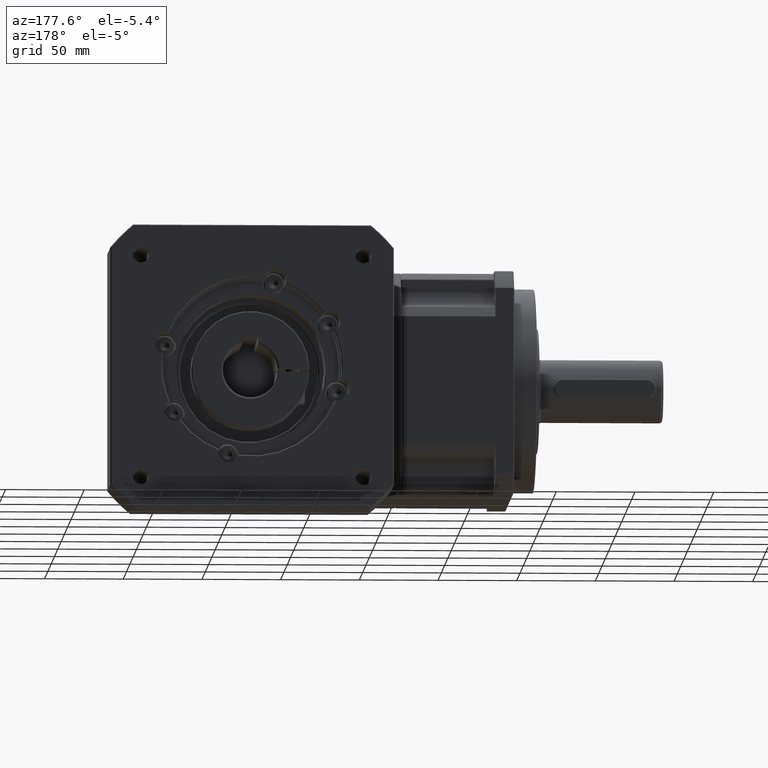
[diagram: clean part render]
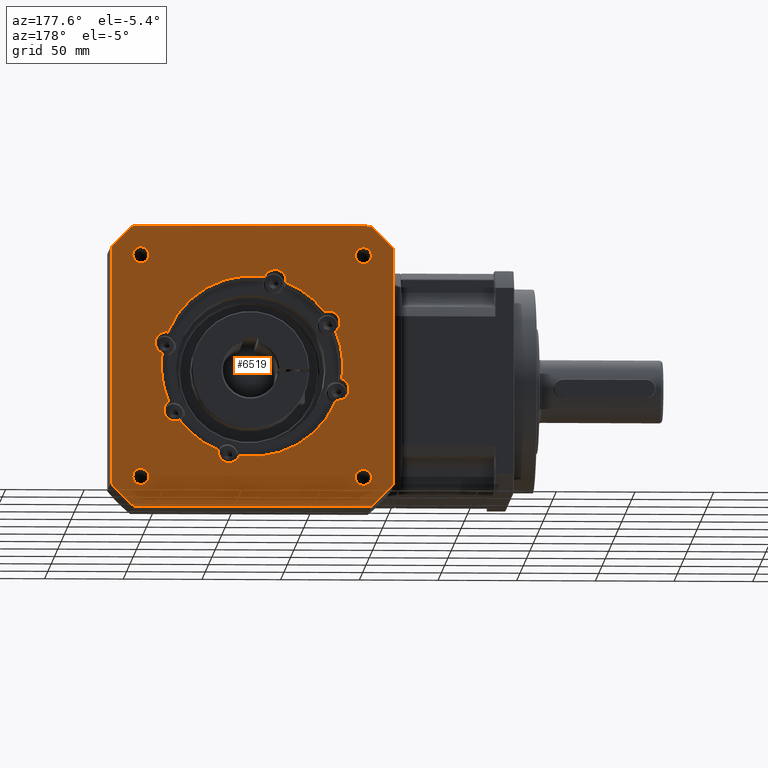
[diagram: same view with one face highlighted and labeled with its STEP entity id]
A machine part, auxiliary view. The second image highlights one B-rep face of the part: STEP entity #6519.
In plain terms, the highlighted planar face has unit normal (0, -1, 0).
Its self-contained STEP definition (entity closure, byte-faithful):
#4419=DIRECTION('',(0.E0,1.E0,0.E0));
#4420=VECTOR('',#4419,1.507149627608E2);
#4421=CARTESIAN_POINT('',(5.E1,-7.535748138042E1,8.95E1));
#4422=LINE('',#4421,#4420);
#4427=CARTESIAN_POINT('',(5.E1,8.95E1,7.535748138042E1));
#4439=CARTESIAN_POINT('',(5.E1,7.535748138042E1,8.95E1));
#4446=DIRECTION('',(0.E0,0.E0,-1.E0));
#4447=VECTOR('',#4446,1.507149627608E2);
#4448=CARTESIAN_POINT('',(5.E1,8.95E1,7.535748138042E1));
#4449=LINE('',#4448,#4447);
#4466=CARTESIAN_POINT('',(5.E1,8.95E1,-7.535748138042E1));
#4477=DIRECTION('',(0.E0,-1.E0,0.E0));
#4478=VECTOR('',#4477,1.507149627608E2);
#4479=CARTESIAN_POINT('',(5.E1,7.535748138042E1,-8.95E1));
#4480=LINE('',#4479,#4478);
#4486=CARTESIAN_POINT('',(5.E1,-7.535748138042E1,-8.95E1));
#4504=DIRECTION('',(0.E0,0.E0,1.E0));
#4505=VECTOR('',#4504,1.507149627608E2);
#4506=CARTESIAN_POINT('',(5.E1,-8.95E1,-7.535748138042E1));
#4507=LINE('',#4506,#4505);
#4527=CARTESIAN_POINT('',(5.E1,0.E0,0.E0));
#4528=DIRECTION('',(1.E0,0.E0,0.E0));
#4529=DIRECTION('',(0.E0,7.649572649573E-1,6.440810374395E-1));
#4530=AXIS2_PLACEMENT_3D('',#4527,#4528,#4529);
#4532=CARTESIAN_POINT('',(5.E1,0.E0,0.E0));
#4533=DIRECTION('',(1.E0,0.E0,0.E0));
#4534=DIRECTION('',(0.E0,6.440810374395E-1,-7.649572649573E-1));
#4535=AXIS2_PLACEMENT_3D('',#4532,#4533,#4534);
#4537=CARTESIAN_POINT('',(5.E1,0.E0,0.E0));
#4538=DIRECTION('',(1.E0,0.E0,0.E0));
#4539=DIRECTION('',(0.E0,-7.649572649573E-1,-6.440810374395E-1));
#4540=AXIS2_PLACEMENT_3D('',#4537,#4538,#4539);
#4542=CARTESIAN_POINT('',(5.E1,0.E0,0.E0));
#4543=DIRECTION('',(1.E0,0.E0,0.E0));
#4544=DIRECTION('',(0.E0,-6.440810374395E-1,7.649572649573E-1));
#4545=AXIS2_PLACEMENT_3D('',#4542,#4543,#4544);
#4547=CARTESIAN_POINT('',(5.E1,-5.457480918533E1,1.462327604829E1));
#4548=DIRECTION('',(-1.E0,0.E0,0.E0));
#4549=DIRECTION('',(0.E0,0.E0,1.E0));
#4550=AXIS2_PLACEMENT_3D('',#4547,#4548,#4549);
#4552=CARTESIAN_POINT('',(5.E1,-5.457480918533E1,1.462327604829E1));
#4553=DIRECTION('',(-1.E0,0.E0,0.E0));
#4554=DIRECTION('',(0.E0,-3.578819211548E-1,-9.337668501883E-1));
#4555=AXIS2_PLACEMENT_3D('',#4552,#4553,#4554);
#4557=CARTESIAN_POINT('',(5.E1,0.E0,0.E0));
#4558=DIRECTION('',(-1.E0,0.E0,0.E0));
#4559=DIRECTION('',(0.E0,-3.735736941311E-1,-9.276005040174E-1));
#4560=AXIS2_PLACEMENT_3D('',#4557,#4558,#4559);
#4562=CARTESIAN_POINT('',(5.E1,-1.462327604829E1,-5.457480918533E1));
#4563=DIRECTION('',(-1.E0,0.E0,0.E0));
#4564=DIRECTION('',(0.E0,0.E0,-1.E0));
#4565=AXIS2_PLACEMENT_3D('',#4562,#4563,#4564);
#4567=CARTESIAN_POINT('',(5.E1,-1.462327604829E1,-5.457480918533E1));
#4568=DIRECTION('',(-1.E0,0.E0,0.E0));
#4569=DIRECTION('',(0.E0,9.337668501883E-1,-3.578819211548E-1));
#4570=AXIS2_PLACEMENT_3D('',#4567,#4568,#4569);
#4572=CARTESIAN_POINT('',(5.E1,0.E0,0.E0));
#4573=DIRECTION('',(-1.E0,0.E0,0.E0));
#4574=DIRECTION('',(0.E0,0.E0,-1.E0));
#4575=AXIS2_PLACEMENT_3D('',#4572,#4573,#4574);
#4577=CARTESIAN_POINT('',(5.E1,0.E0,0.E0));
#4578=DIRECTION('',(-1.E0,0.E0,0.E0));
#4579=DIRECTION('',(0.E0,3.917561142297E-1,-9.200690990157E-1));
#4580=AXIS2_PLACEMENT_3D('',#4577,#4578,#4579);
#4582=CARTESIAN_POINT('',(5.E1,2.825E1,-4.893043531382E1));
#4583=DIRECTION('',(-1.E0,0.E0,0.E0));
#4584=DIRECTION('',(0.E0,0.E0,-1.E0));
#4585=AXIS2_PLACEMENT_3D('',#4582,#4583,#4584);
#4587=CARTESIAN_POINT('',(5.E1,2.825E1,-4.893043531382E1));
#4588=DIRECTION('',(-1.E0,0.E0,0.E0));
#4589=DIRECTION('',(0.E0,9.133336051280E-1,4.072121385027E-1));
#4590=AXIS2_PLACEMENT_3D('',#4587,#4588,#4589);
#4592=CARTESIAN_POINT('',(5.E1,0.E0,0.E0));
#4593=DIRECTION('',(-1.E0,0.E0,0.E0));
#4594=DIRECTION('',(0.E0,9.276005040174E-1,-3.735736941311E-1));
#4595=AXIS2_PLACEMENT_3D('',#4592,#4593,#4594);
#4597=CARTESIAN_POINT('',(5.E1,5.457480918533E1,-1.462327604829E1));
#4598=DIRECTION('',(-1.E0,0.E0,0.E0));
#4599=DIRECTION('',(0.E0,0.E0,-1.E0));
#4600=AXIS2_PLACEMENT_3D('',#4597,#4598,#4599);
#4602=CARTESIAN_POINT('',(5.E1,5.457480918533E1,-1.462327604829E1));
#4603=DIRECTION('',(-1.E0,0.E0,0.E0));
#4604=DIRECTION('',(0.E0,3.578819211548E-1,9.337668501883E-1));
#4605=AXIS2_PLACEMENT_3D('',#4602,#4603,#4604);
#4607=CARTESIAN_POINT('',(5.E1,0.E0,0.E0));
#4608=DIRECTION('',(-1.E0,0.E0,0.E0));
#4609=DIRECTION('',(0.E0,3.735736941311E-1,9.276005040174E-1));
#4610=AXIS2_PLACEMENT_3D('',#4607,#4608,#4609);
#4612=CARTESIAN_POINT('',(5.E1,1.462327604829E1,5.457480918533E1));
#4613=DIRECTION('',(-1.E0,0.E0,0.E0));
#4614=DIRECTION('',(0.E0,0.E0,1.E0));
#4615=AXIS2_PLACEMENT_3D('',#4612,#4613,#4614);
#4617=CARTESIAN_POINT('',(5.E1,1.462327604829E1,5.457480918533E1));
#4618=DIRECTION('',(-1.E0,0.E0,0.E0));
#4619=DIRECTION('',(0.E0,-9.337668501883E-1,3.578819211548E-1));
#4620=AXIS2_PLACEMENT_3D('',#4617,#4618,#4619);
#4622=CARTESIAN_POINT('',(5.E1,0.E0,0.E0));
#4623=DIRECTION('',(-1.E0,0.E0,0.E0));
#4624=DIRECTION('',(0.E0,-3.917561142297E-1,9.200690990157E-1));
#4625=AXIS2_PLACEMENT_3D('',#4622,#4623,#4624);
#4627=CARTESIAN_POINT('',(5.E1,-2.825E1,4.893043531382E1));
#4628=DIRECTION('',(-1.E0,0.E0,0.E0));
#4629=DIRECTION('',(0.E0,0.E0,1.E0));
#4630=AXIS2_PLACEMENT_3D('',#4627,#4628,#4629);
#4632=CARTESIAN_POINT('',(5.E1,-2.825E1,4.893043531382E1));
#4633=DIRECTION('',(-1.E0,0.E0,0.E0));
#4634=DIRECTION('',(0.E0,-9.133336051280E-1,-4.072121385027E-1));
#4635=AXIS2_PLACEMENT_3D('',#4632,#4633,#4634);
#4637=CARTESIAN_POINT('',(5.E1,0.E0,0.E0));
#4638=DIRECTION('',(-1.E0,0.E0,0.E0));
#4639=DIRECTION('',(0.E0,-9.276005040174E-1,3.735736941311E-1));
#4640=AXIS2_PLACEMENT_3D('',#4637,#4638,#4639);
#4642=CARTESIAN_POINT('',(5.E1,7.071067811866E1,-7.071067811865E1));
#4643=DIRECTION('',(-1.E0,0.E0,0.E0));
#4644=DIRECTION('',(0.E0,0.E0,1.E0));
#4645=AXIS2_PLACEMENT_3D('',#4642,#4643,#4644);
#4647=CARTESIAN_POINT('',(5.E1,7.071067811866E1,-7.071067811865E1));
#4648=DIRECTION('',(-1.E0,0.E0,0.E0));
#4649=DIRECTION('',(0.E0,0.E0,-1.E0));
#4650=AXIS2_PLACEMENT_3D('',#4647,#4648,#4649);
#4652=CARTESIAN_POINT('',(5.E1,7.071067811865E1,7.071067811866E1));
#4653=DIRECTION('',(-1.E0,0.E0,0.E0));
#4654=DIRECTION('',(0.E0,0.E0,1.E0));
#4655=AXIS2_PLACEMENT_3D('',#4652,#4653,#4654);
#4657=CARTESIAN_POINT('',(5.E1,7.071067811865E1,7.071067811866E1));
#4658=DIRECTION('',(-1.E0,0.E0,0.E0));
#4659=DIRECTION('',(0.E0,0.E0,-1.E0));
#4660=AXIS2_PLACEMENT_3D('',#4657,#4658,#4659);
#4662=CARTESIAN_POINT('',(5.E1,-7.071067811866E1,7.071067811865E1));
#4663=DIRECTION('',(-1.E0,0.E0,0.E0));
#4664=DIRECTION('',(0.E0,0.E0,1.E0));
#4665=AXIS2_PLACEMENT_3D('',#4662,#4663,#4664);
#4667=CARTESIAN_POINT('',(5.E1,-7.071067811866E1,7.071067811865E1));
#4668=DIRECTION('',(-1.E0,0.E0,0.E0));
#4669=DIRECTION('',(0.E0,0.E0,-1.E0));
#4670=AXIS2_PLACEMENT_3D('',#4667,#4668,#4669);
#4672=CARTESIAN_POINT('',(5.E1,-7.071067811865E1,-7.071067811866E1));
#4673=DIRECTION('',(-1.E0,0.E0,0.E0));
#4674=DIRECTION('',(0.E0,0.E0,1.E0));
#4675=AXIS2_PLACEMENT_3D('',#4672,#4673,#4674);
#4677=CARTESIAN_POINT('',(5.E1,-7.071067811865E1,-7.071067811866E1));
#4678=DIRECTION('',(-1.E0,0.E0,0.E0));
#4679=DIRECTION('',(0.E0,0.E0,-1.E0));
#4680=AXIS2_PLACEMENT_3D('',#4677,#4678,#4679);
#4910=CARTESIAN_POINT('',(5.E1,-2.153652346666E1,-5.347616905660E1));
#5057=CARTESIAN_POINT('',(5.E1,-2.258473998534E1,5.304198355826E1));
#5109=CARTESIAN_POINT('',(5.E1,2.153652346666E1,5.347616905660E1));
#5121=CARTESIAN_POINT('',(5.E1,5.707998263342E1,-8.086908096974E0));
#5176=CARTESIAN_POINT('',(5.E1,3.464333523590E1,-4.607995034430E1));
#5596=VERTEX_POINT('',#5109);
#5610=CARTESIAN_POINT('',(5.E1,-2.825E1,5.593043531382E1));
#5612=VERTEX_POINT('',#5610);
#5614=CARTESIAN_POINT('',(5.E1,-8.086908096974E0,-5.707998263342E1));
#5615=CARTESIAN_POINT('',(5.E1,-1.462327604829E1,-6.157480918533E1));
#5616=VERTEX_POINT('',#5614);
#5617=VERTEX_POINT('',#5615);
#5626=CARTESIAN_POINT('',(5.E1,-7.535748138042E1,8.95E1));
#5627=CARTESIAN_POINT('',(5.E1,-8.95E1,7.535748138042E1));
#5628=VERTEX_POINT('',#5626);
#5629=VERTEX_POINT('',#5627);
#5630=VERTEX_POINT('',#4910);
#5640=CARTESIAN_POINT('',(5.E1,-7.071067811866E1,6.561067811865E1));
#5642=VERTEX_POINT('',#5640);
#5657=VERTEX_POINT('',#4486);
#5662=CARTESIAN_POINT('',(5.E1,5.457480918533E1,-2.162327604829E1));
#5663=CARTESIAN_POINT('',(5.E1,5.347616905660E1,-2.153652346666E1));
#5664=VERTEX_POINT('',#5662);
#5665=VERTEX_POINT('',#5663);
#5682=CARTESIAN_POINT('',(5.E1,-7.071067811865E1,-7.581067811866E1));
#5684=VERTEX_POINT('',#5682);
#5686=CARTESIAN_POINT('',(5.E1,-5.457480918533E1,2.162327604829E1));
#5688=VERTEX_POINT('',#5686);
#5732=CARTESIAN_POINT('',(5.E1,-7.071067811866E1,7.581067811865E1));
#5734=VERTEX_POINT('',#5732);
#5741=VERTEX_POINT('',#4439);
#5746=CARTESIAN_POINT('',(5.E1,-7.071067811865E1,-6.561067811866E1));
#5747=VERTEX_POINT('',#5746);
#5782=CARTESIAN_POINT('',(5.E1,-8.95E1,-7.535748138042E1));
#5783=VERTEX_POINT('',#5782);
#5784=CARTESIAN_POINT('',(5.E1,1.462327604829E1,6.157480918533E1));
#5786=VERTEX_POINT('',#5784);
#5794=CARTESIAN_POINT('',(5.E1,7.071067811866E1,-6.561067811865E1));
#5795=CARTESIAN_POINT('',(5.E1,7.071067811866E1,-7.581067811865E1));
#5796=VERTEX_POINT('',#5794);
#5797=VERTEX_POINT('',#5795);
#5798=CARTESIAN_POINT('',(5.E1,7.071067811865E1,6.561067811866E1));
#5799=CARTESIAN_POINT('',(5.E1,7.071067811865E1,7.581067811866E1));
#5800=VERTEX_POINT('',#5798);
#5801=VERTEX_POINT('',#5799);
#5802=CARTESIAN_POINT('',(5.E1,2.825E1,-5.593043531382E1));
#5803=CARTESIAN_POINT('',(5.E1,2.258473998534E1,-5.304198355826E1));
#5804=VERTEX_POINT('',#5802);
#5805=VERTEX_POINT('',#5803);
#5806=VERTEX_POINT('',#4466);
#5817=CARTESIAN_POINT('',(5.E1,8.086908096974E0,5.707998263342E1));
#5818=VERTEX_POINT('',#5817);
#5849=CARTESIAN_POINT('',(5.E1,1.776356839400E-14,-5.765E1));
#5850=VERTEX_POINT('',#5849);
#5852=VERTEX_POINT('',#5121);
#5859=VERTEX_POINT('',#5176);
#5862=VERTEX_POINT('',#4427);
#5870=CARTESIAN_POINT('',(5.E1,7.535748138042E1,-8.95E1));
#5871=VERTEX_POINT('',#5870);
#5876=CARTESIAN_POINT('',(5.E1,-5.707998263342E1,8.086908096974E0));
#5877=VERTEX_POINT('',#5876);
#5886=CARTESIAN_POINT('',(5.E1,-3.464333523590E1,4.607995034430E1));
#5887=VERTEX_POINT('',#5886);
#5900=VERTEX_POINT('',#5057);
#5913=CARTESIAN_POINT('',(5.E1,-5.347616905660E1,2.153652346666E1));
#5914=VERTEX_POINT('',#5913);
#6442=CARTESIAN_POINT('',(5.E1,9.E1,-9.E1));
#6443=DIRECTION('',(-1.E0,0.E0,0.E0));
#6444=DIRECTION('',(0.E0,0.E0,1.E0));
#6445=AXIS2_PLACEMENT_3D('',#6442,#6443,#6444);
#6446=PLANE('',#6445);
#6447=ORIENTED_EDGE('',*,*,#6337,.T.);
#6448=ORIENTED_EDGE('',*,*,#6352,.F.);
#6449=ORIENTED_EDGE('',*,*,#6366,.T.);
#6450=ORIENTED_EDGE('',*,*,#6380,.F.);
#6451=ORIENTED_EDGE('',*,*,#6396,.T.);
#6452=ORIENTED_EDGE('',*,*,#6410,.F.);
#6453=ORIENTED_EDGE('',*,*,#6424,.T.);
#6454=ORIENTED_EDGE('',*,*,#6435,.F.);
#6455=EDGE_LOOP('',(#6447,#6448,#6449,#6450,#6451,#6452,#6453,#6454));
#6456=FACE_OUTER_BOUND('',#6455,.F.);
#6458=ORIENTED_EDGE('',*,*,#6457,.F.);
#6460=ORIENTED_EDGE('',*,*,#6459,.F.);
#6462=ORIENTED_EDGE('',*,*,#6461,.F.);
#6464=ORIENTED_EDGE('',*,*,#6463,.F.);
#6466=ORIENTED_EDGE('',*,*,#6465,.F.);
#6468=ORIENTED_EDGE('',*,*,#6467,.F.);
#6470=ORIENTED_EDGE('',*,*,#6469,.F.);
#6471=ORIENTED_EDGE('',*,*,#5955,.F.);
#6472=ORIENTED_EDGE('',*,*,#5938,.F.);
#6474=ORIENTED_EDGE('',*,*,#6473,.F.);
#6476=ORIENTED_EDGE('',*,*,#6475,.F.);
#6478=ORIENTED_EDGE('',*,*,#6477,.F.);
#6480=ORIENTED_EDGE('',*,*,#6479,.F.);
#6482=ORIENTED_EDGE('',*,*,#6481,.F.);
#6484=ORIENTED_EDGE('',*,*,#6483,.F.);
#6486=ORIENTED_EDGE('',*,*,#6485,.F.);
#6488=ORIENTED_EDGE('',*,*,#6487,.F.);
#6490=ORIENTED_EDGE('',*,*,#6489,.F.);
#6492=ORIENTED_EDGE('',*,*,#6491,.F.);
#6493=EDGE_LOOP('',(#6458,#6460,#6462,#6464,#6466,#6468,#6470,#6471,#6472,#6474,
#6476,#6478,#6480,#6482,#6484,#6486,#6488,#6490,#6492));
#6494=FACE_BOUND('',#6493,.F.);
#6496=ORIENTED_EDGE('',*,*,#6495,.F.);
#6498=ORIENTED_EDGE('',*,*,#6497,.F.);
#6499=EDGE_LOOP('',(#6496,#6498));
#6500=FACE_BOUND('',#6499,.F.);
#6502=ORIENTED_EDGE('',*,*,#6501,.F.);
#6504=ORIENTED_EDGE('',*,*,#6503,.F.);
#6505=EDGE_LOOP('',(#6502,#6504));
#6506=FACE_BOUND('',#6505,.F.);
#6508=ORIENTED_EDGE('',*,*,#6507,.F.);
#6510=ORIENTED_EDGE('',*,*,#6509,.F.);
#6511=EDGE_LOOP('',(#6508,#6510));
#6512=FACE_BOUND('',#6511,.F.);
#6514=ORIENTED_EDGE('',*,*,#6513,.F.);
#6516=ORIENTED_EDGE('',*,*,#6515,.F.);
#6517=EDGE_LOOP('',(#6514,#6516));
#6518=FACE_BOUND('',#6517,.F.);
#6519=ADVANCED_FACE('',(#6456,#6494,#6500,#6506,#6512,#6518),#6446,.F.);
#4531=CIRCLE('',#4530,1.17E2);
#4536=CIRCLE('',#4535,1.17E2);
#4541=CIRCLE('',#4540,1.17E2);
#4546=CIRCLE('',#4545,1.17E2);
#4551=CIRCLE('',#4550,7.E0);
#4556=CIRCLE('',#4555,7.E0);
#4561=CIRCLE('',#4560,5.765E1);
#4566=CIRCLE('',#4565,7.E0);
#4571=CIRCLE('',#4570,7.E0);
#4576=CIRCLE('',#4575,5.765E1);
#4581=CIRCLE('',#4580,5.765E1);
#4586=CIRCLE('',#4585,7.E0);
#4591=CIRCLE('',#4590,7.E0);
#4596=CIRCLE('',#4595,5.765E1);
#4601=CIRCLE('',#4600,7.E0);
#4606=CIRCLE('',#4605,7.E0);
#4611=CIRCLE('',#4610,5.765E1);
#4616=CIRCLE('',#4615,7.E0);
#4621=CIRCLE('',#4620,7.E0);
#4626=CIRCLE('',#4625,5.765E1);
#4631=CIRCLE('',#4630,7.E0);
#4636=CIRCLE('',#4635,7.E0);
#4641=CIRCLE('',#4640,5.765E1);
#4646=CIRCLE('',#4645,5.1E0);
#4651=CIRCLE('',#4650,5.1E0);
#4656=CIRCLE('',#4655,5.1E0);
#4661=CIRCLE('',#4660,5.1E0);
#4666=CIRCLE('',#4665,5.1E0);
#4671=CIRCLE('',#4670,5.1E0);
#4676=CIRCLE('',#4675,5.1E0);
#4681=CIRCLE('',#4680,5.1E0);
#5938=EDGE_CURVE('',#5859,#5804,#4591,.T.);
#5955=EDGE_CURVE('',#5804,#5805,#4586,.T.);
#6337=EDGE_CURVE('',#5628,#5741,#4422,.T.);
#6352=EDGE_CURVE('',#5862,#5741,#4531,.T.);
#6366=EDGE_CURVE('',#5862,#5806,#4449,.T.);
#6380=EDGE_CURVE('',#5871,#5806,#4536,.T.);
#6396=EDGE_CURVE('',#5871,#5657,#4480,.T.);
#6410=EDGE_CURVE('',#5783,#5657,#4541,.T.);
#6424=EDGE_CURVE('',#5783,#5629,#4507,.T.);
#6435=EDGE_CURVE('',#5628,#5629,#4546,.T.);
#6457=EDGE_CURVE('',#5688,#5914,#4551,.T.);
#6459=EDGE_CURVE('',#5877,#5688,#4556,.T.);
#6461=EDGE_CURVE('',#5630,#5877,#4561,.T.);
#6463=EDGE_CURVE('',#5617,#5630,#4566,.T.);
#6465=EDGE_CURVE('',#5616,#5617,#4571,.T.);
#6467=EDGE_CURVE('',#5850,#5616,#4576,.T.);
#6469=EDGE_CURVE('',#5805,#5850,#4581,.T.);
#6473=EDGE_CURVE('',#5665,#5859,#4596,.T.);
#6475=EDGE_CURVE('',#5664,#5665,#4601,.T.);
#6477=EDGE_CURVE('',#5852,#5664,#4606,.T.);
#6479=EDGE_CURVE('',#5596,#5852,#4611,.T.);
#6481=EDGE_CURVE('',#5786,#5596,#4616,.T.);
#6483=EDGE_CURVE('',#5818,#5786,#4621,.T.);
#6485=EDGE_CURVE('',#5900,#5818,#4626,.T.);
#6487=EDGE_CURVE('',#5612,#5900,#4631,.T.);
#6489=EDGE_CURVE('',#5887,#5612,#4636,.T.);
#6491=EDGE_CURVE('',#5914,#5887,#4641,.T.);
#6495=EDGE_CURVE('',#5796,#5797,#4646,.T.);
#6497=EDGE_CURVE('',#5797,#5796,#4651,.T.);
#6501=EDGE_CURVE('',#5801,#5800,#4656,.T.);
#6503=EDGE_CURVE('',#5800,#5801,#4661,.T.);
#6507=EDGE_CURVE('',#5734,#5642,#4666,.T.);
#6509=EDGE_CURVE('',#5642,#5734,#4671,.T.);
#6513=EDGE_CURVE('',#5747,#5684,#4676,.T.);
#6515=EDGE_CURVE('',#5684,#5747,#4681,.T.);